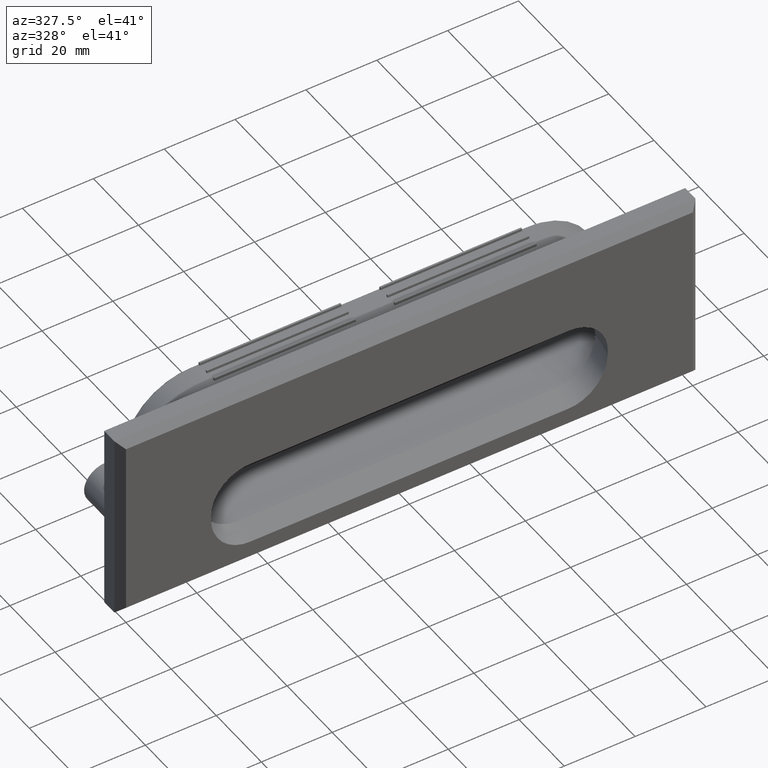
[diagram: clean part render]
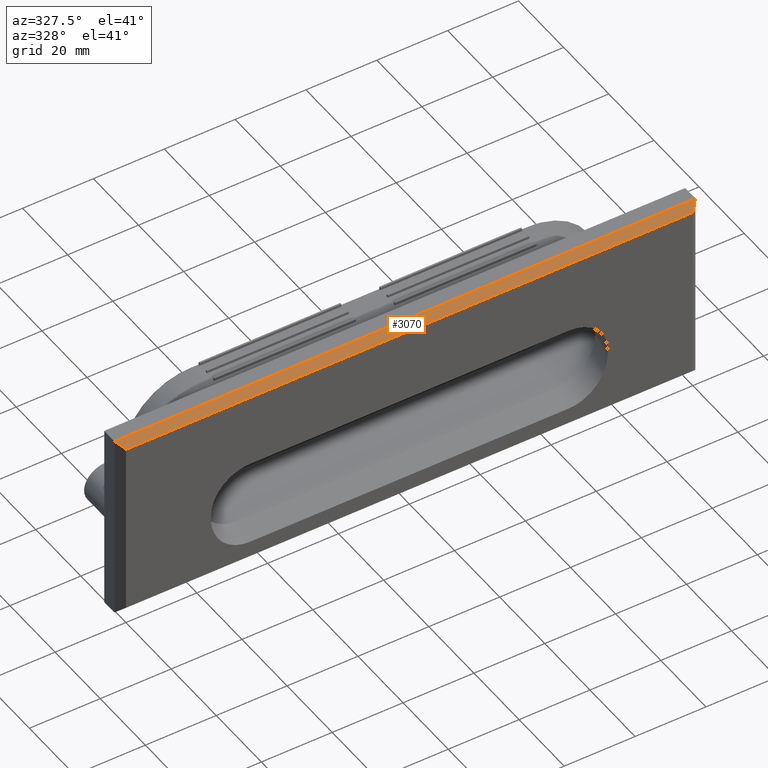
[diagram: same view with one face highlighted and labeled with its STEP entity id]
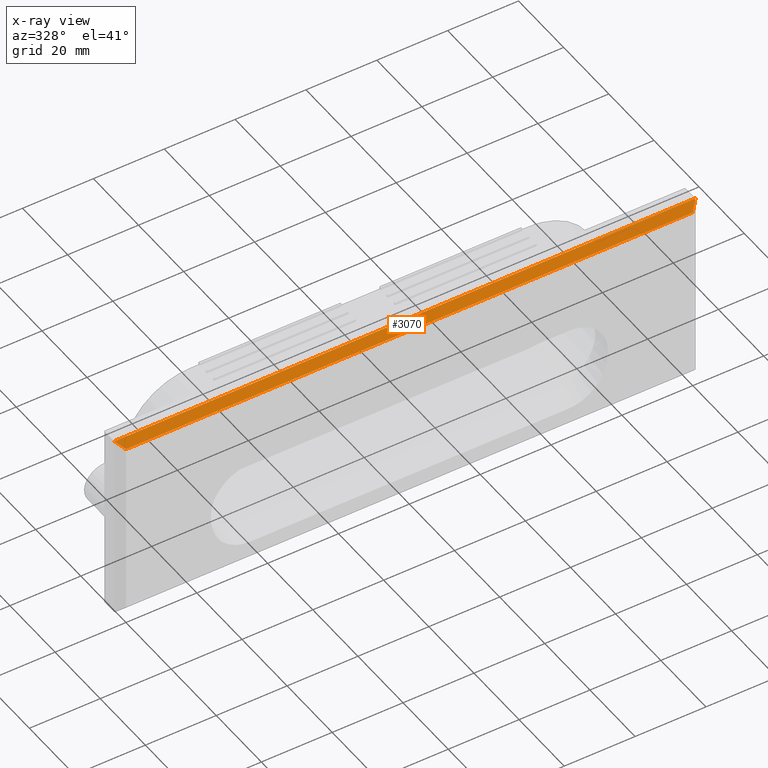
[diagram: x-ray of the same camera — body ghosted, the highlighted face saturated]
A machine part, auxiliary view. The second image highlights one B-rep face of the part: STEP entity #3070.
The next image is the same camera in x-ray: the body ghosted, the highlighted face saturated — about 0% of this face is hidden behind the body in this view.
In plain terms, the highlighted face is a freeform B-spline surface patch.
Its self-contained STEP definition (entity closure, byte-faithful):
#2984=CARTESIAN_POINT('',(-80.0,0.0,25.0));
#2985=VERTEX_POINT('',#2984);
#2986=CARTESIAN_POINT('',(-82.0,1.999999999999890,27.0));
#2987=VERTEX_POINT('',#2986);
#2988=CARTESIAN_POINT('',(-80.0,0.0,25.0));
#2989=CARTESIAN_POINT('',(-82.0,1.999999999999890,27.0));
#2990=QUASI_UNIFORM_CURVE('',1,(#2988,#2989),.UNSPECIFIED.,.F.,.U.);
#2991=EDGE_CURVE('',#2985,#2987,#2990,.T.);
#3043=CARTESIAN_POINT('',(-90.191799682136178,2.099899996123553,27.099899996123550));
#3044=CARTESIAN_POINT('',(-90.191799682136178,-0.099900049767792,24.900099950232210));
#3045=CARTESIAN_POINT('',(90.191804080958974,2.099899996123553,27.099899996123550));
#3046=CARTESIAN_POINT('',(90.191804080958974,-0.099900049767792,24.900099950232210));
#3047=B_SPLINE_SURFACE_WITH_KNOTS('',1,1,((#3043,#3045),(#3044,#3046)),.UNSPECIFIED.,.F.,.F.,.U.,(2,2),(2,2),(0.0,3.110987059408493),(0.0,180.383603763095210),.UNSPECIFIED.);
#3048=CARTESIAN_POINT('',(80.0,0.0,25.0));
#3049=VERTEX_POINT('',#3048);
#3050=CARTESIAN_POINT('',(82.0,1.999999999999890,27.0));
#3051=VERTEX_POINT('',#3050);
#3052=CARTESIAN_POINT('',(80.0,0.0,25.0));
#3053=CARTESIAN_POINT('',(82.0,1.999999999999890,27.0));
#3054=QUASI_UNIFORM_CURVE('',1,(#3052,#3053),.UNSPECIFIED.,.F.,.U.);
#3055=EDGE_CURVE('',#3049,#3051,#3054,.T.);
#3056=ORIENTED_EDGE('',*,*,#3055,.T.);
#3057=CARTESIAN_POINT('',(-82.0,1.999999999999890,27.0));
#3058=CARTESIAN_POINT('',(82.0,1.999999999999890,27.0));
#3059=QUASI_UNIFORM_CURVE('',1,(#3057,#3058),.UNSPECIFIED.,.F.,.U.);
#3060=EDGE_CURVE('',#2987,#3051,#3059,.T.);
#3061=ORIENTED_EDGE('',*,*,#3060,.F.);
#3062=ORIENTED_EDGE('',*,*,#2991,.F.);
#3063=CARTESIAN_POINT('',(80.0,0.0,25.0));
#3064=CARTESIAN_POINT('',(-80.0,0.0,25.0));
#3065=QUASI_UNIFORM_CURVE('',1,(#3063,#3064),.UNSPECIFIED.,.F.,.U.);
#3066=EDGE_CURVE('',#3049,#2985,#3065,.T.);
#3067=ORIENTED_EDGE('',*,*,#3066,.F.);
#3068=EDGE_LOOP('',(#3056,#3061,#3062,#3067));
#3069=FACE_OUTER_BOUND('',#3068,.T.);
#3070=ADVANCED_FACE('',(#3069),#3047,.T.);